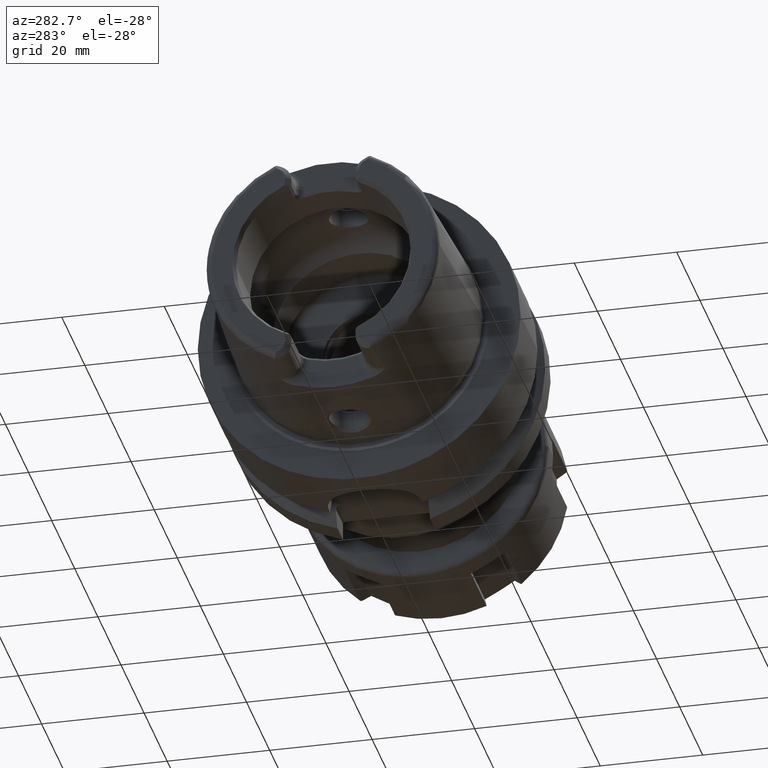
[diagram: clean part render]
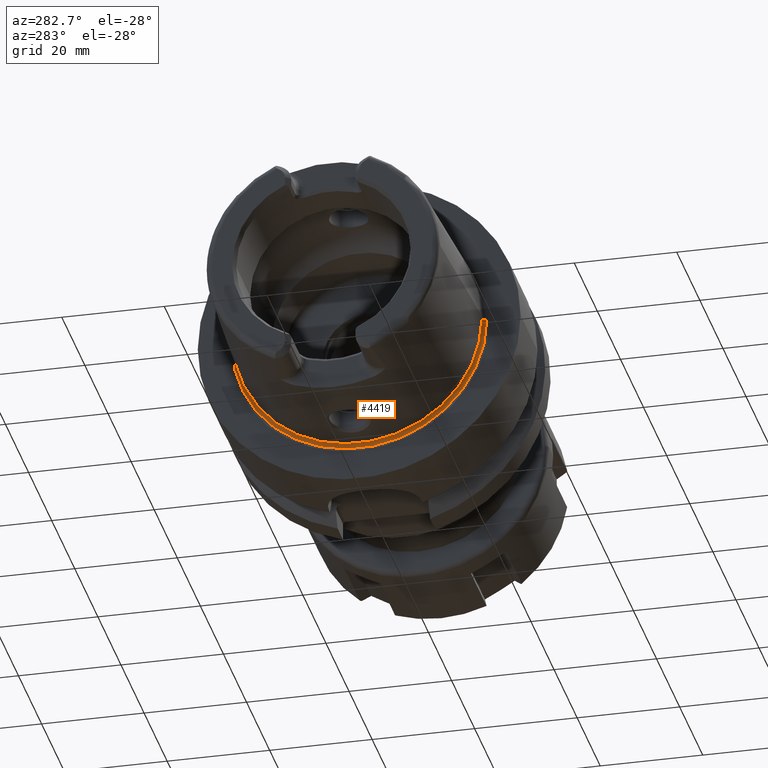
[diagram: same view with one face highlighted and labeled with its STEP entity id]
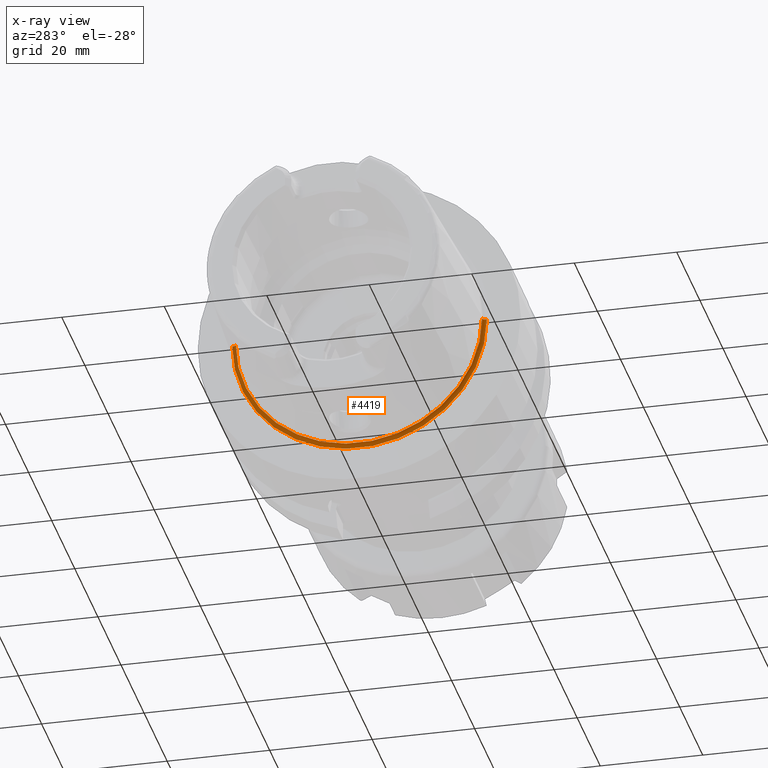
[diagram: x-ray of the same camera — body ghosted, the highlighted face saturated]
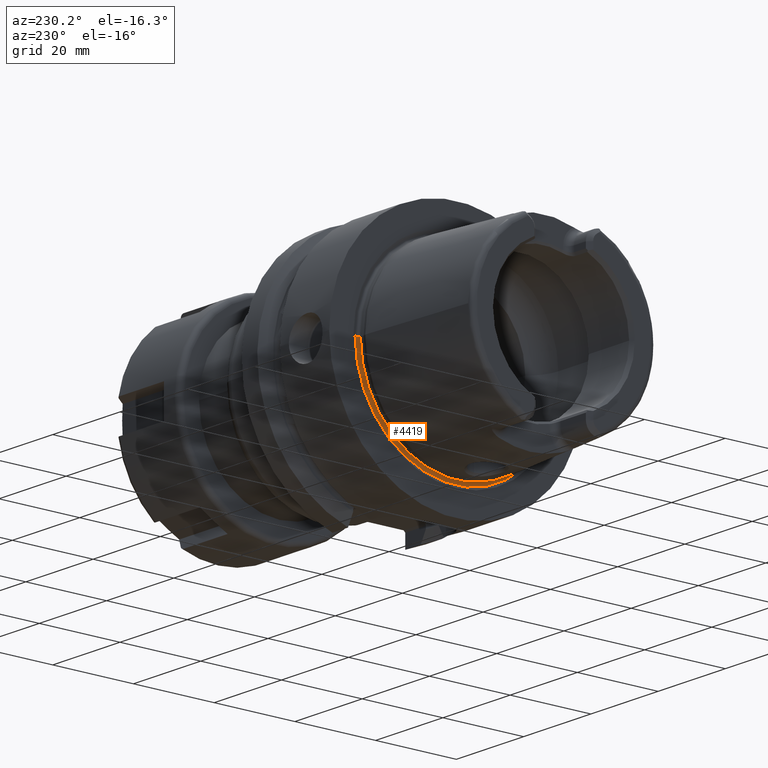
[diagram: same view with one face highlighted and labeled with its STEP entity id]
A machine part, auxiliary view. The second image highlights one B-rep face of the part: STEP entity #4419.
The next image is the same camera in x-ray: the body ghosted, the highlighted face saturated — about 3% of this face is hidden behind the body in this view.
A second angle (auxiliary view) of the same face is appended — the face is thin or edge-on in the first view.
In plain terms, the highlighted toroidal blend (fillet) surface has major radius 24.6204 mm and minor (blend) radius 0.6 mm.
Its self-contained STEP definition (entity closure, byte-faithful):
#1030=CARTESIAN_POINT('',(-3.021696305237E-1,0.E0,0.E0));
#1031=DIRECTION('',(-1.E0,0.E0,0.E0));
#1032=DIRECTION('',(0.E0,1.E0,0.E0));
#1033=AXIS2_PLACEMENT_3D('',#1030,#1031,#1032);
#1045=CARTESIAN_POINT('',(-3.021696305237E-1,2.462042414966E1,0.E0));
#1046=DIRECTION('',(0.E0,0.E0,-1.E0));
#1047=DIRECTION('',(9.304175679820E-1,3.665012267243E-1,0.E0));
#1048=AXIS2_PLACEMENT_3D('',#1045,#1046,#1047);
#1050=CARTESIAN_POINT('',(-3.021696305237E-1,-2.462042414966E1,0.E0));
#1051=DIRECTION('',(0.E0,0.E0,1.E0));
#1052=DIRECTION('',(9.304175679820E-1,-3.665012267243E-1,0.E0));
#1053=AXIS2_PLACEMENT_3D('',#1050,#1051,#1052);
#1055=CARTESIAN_POINT('',(2.560809102655E-1,0.E0,0.E0));
#1056=DIRECTION('',(-1.E0,0.E0,0.E0));
#1057=DIRECTION('',(0.E0,1.E0,0.E0));
#1058=AXIS2_PLACEMENT_3D('',#1055,#1056,#1057);
#2711=CARTESIAN_POINT('',(2.560809102655E-1,-2.484032488569E1,0.E0));
#2712=CARTESIAN_POINT('',(-3.021696305237E-1,-2.402042414966E1,0.E0));
#2713=VERTEX_POINT('',#2711);
#2714=VERTEX_POINT('',#2712);
#2719=CARTESIAN_POINT('',(2.560809102655E-1,2.484032488569E1,0.E0));
#2720=CARTESIAN_POINT('',(-3.021696305237E-1,2.402042414966E1,0.E0));
#2721=VERTEX_POINT('',#2719);
#2722=VERTEX_POINT('',#2720);
#4407=CARTESIAN_POINT('',(-3.021696305237E-1,0.E0,0.E0));
#4408=DIRECTION('',(-1.E0,0.E0,0.E0));
#4409=DIRECTION('',(0.E0,-1.E0,0.E0));
#4410=AXIS2_PLACEMENT_3D('',#4407,#4408,#4409);
#4411=TOROIDAL_SURFACE('',#4410,2.462042414966E1,6.E-1);
#4412=ORIENTED_EDGE('',*,*,#4400,.T.);
#4413=ORIENTED_EDGE('',*,*,#4374,.T.);
#4414=ORIENTED_EDGE('',*,*,#4397,.F.);
#4416=ORIENTED_EDGE('',*,*,#4415,.F.);
#4417=EDGE_LOOP('',(#4412,#4413,#4414,#4416));
#4418=FACE_OUTER_BOUND('',#4417,.F.);
#4419=ADVANCED_FACE('',(#4418),#4411,.F.);
#1034=CIRCLE('',#1033,2.402042414966E1);
#1049=CIRCLE('',#1048,6.E-1);
#1054=CIRCLE('',#1053,6.E-1);
#1059=CIRCLE('',#1058,2.484032488569E1);
#4374=EDGE_CURVE('',#2722,#2714,#1034,.T.);
#4397=EDGE_CURVE('',#2713,#2714,#1054,.T.);
#4400=EDGE_CURVE('',#2721,#2722,#1049,.T.);
#4415=EDGE_CURVE('',#2721,#2713,#1059,.T.);